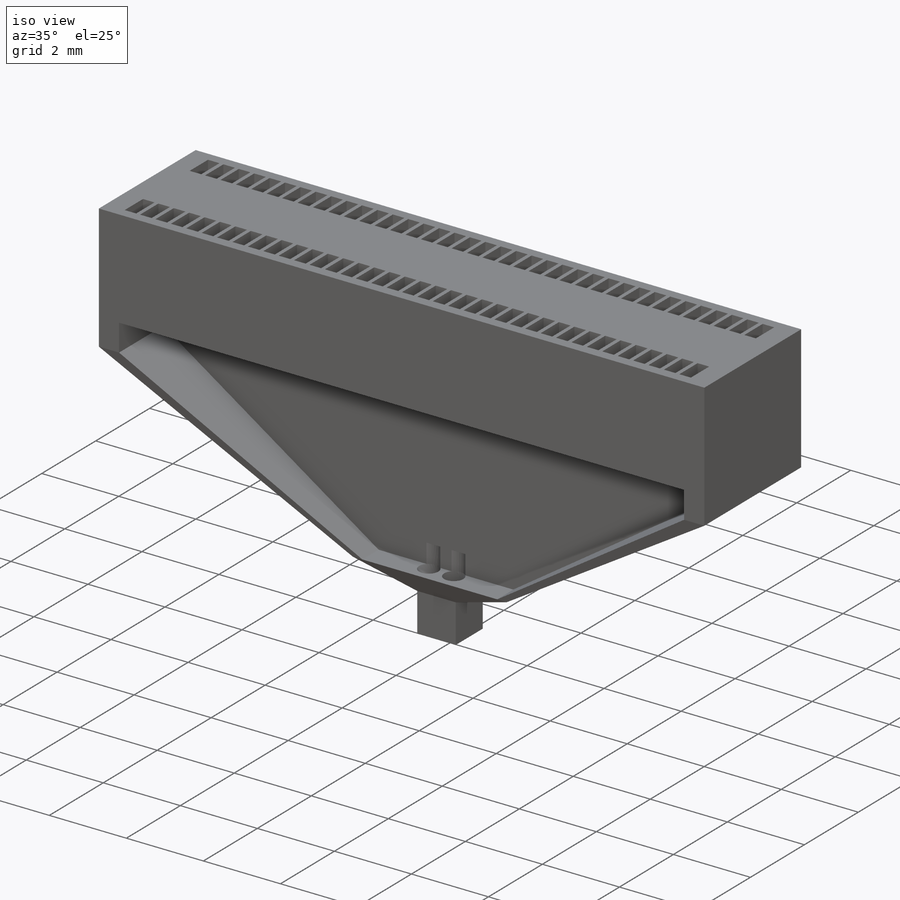
[diagram: iso view]
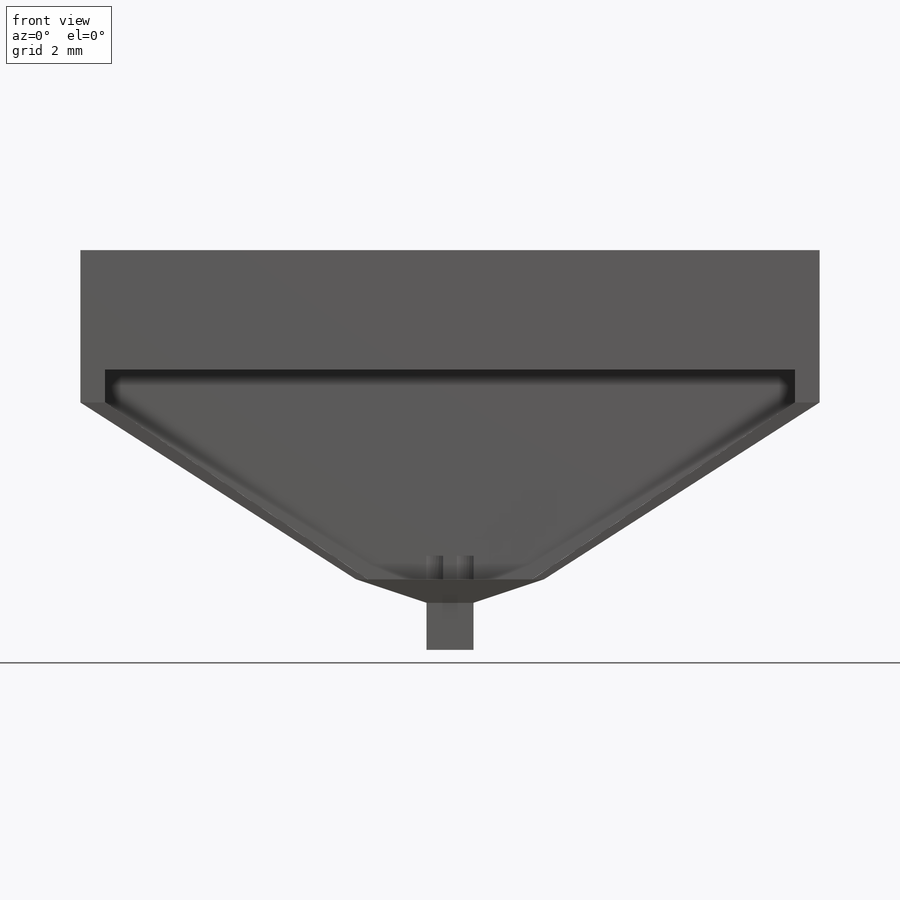
[diagram: front view]
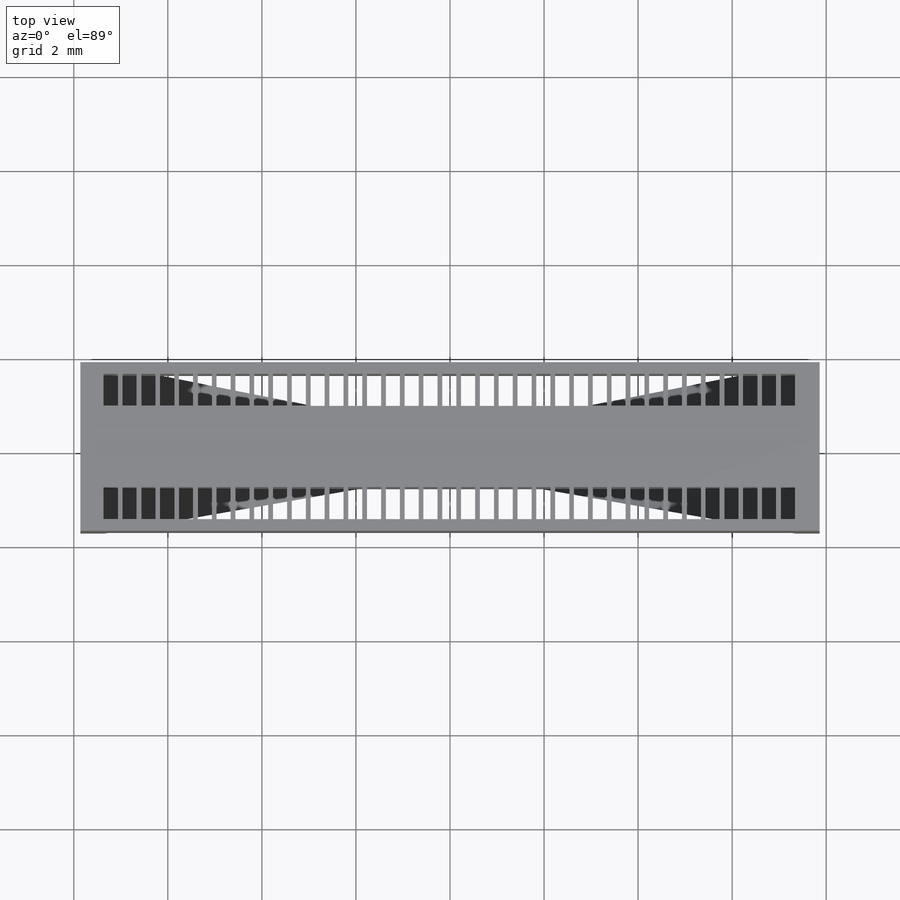
[diagram: top view]
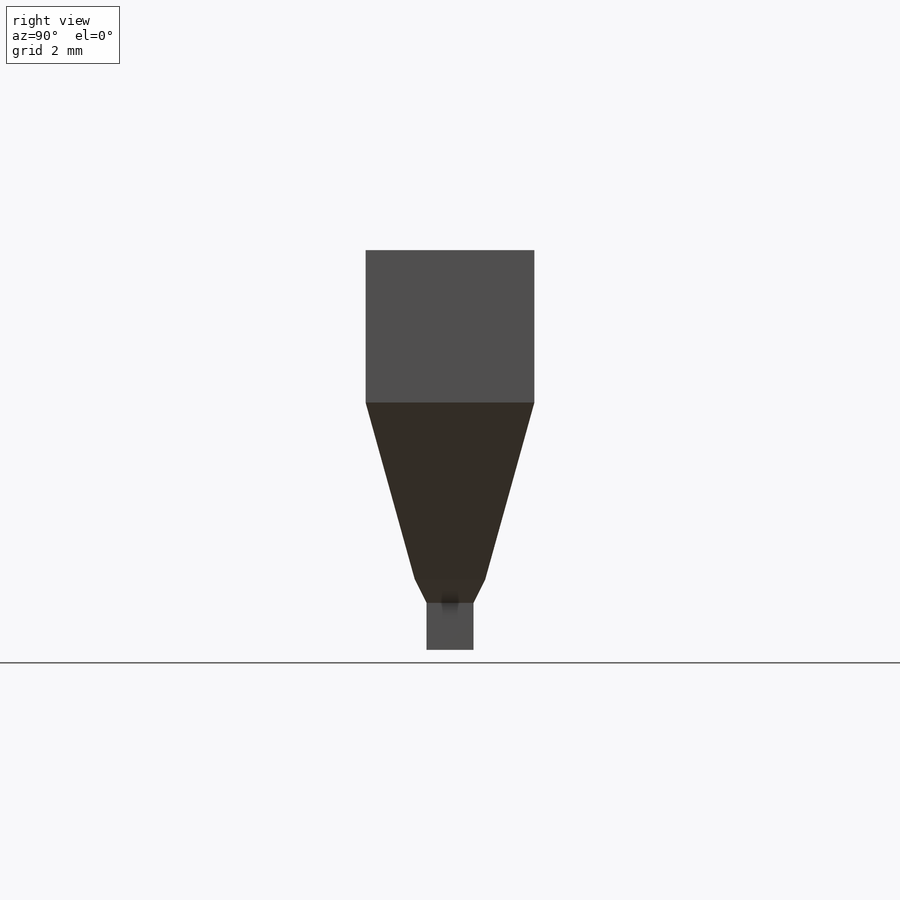
[diagram: right view]
SOLIDWORKS PART (.sldprt)
format: sldprt  version: not decoded by parser v0  size: 954,880 bytes
history: native  units: mm
features: sketch x23, extrude x4, cut_extrude x3, plane x2, material x1 (+12 scaffold rows collapsed)
feature tree (45):
  scaffold x12  (default folders/planes/origin — collapsed)
  material  "Material <not specified>"
  sketch  "main block"  dims[D1=15.72mm D2=3.59mm]
  extrude  "Main Well Block"  Depth=2.54mm
  sketch  "well sketch"  dims[D1=0.3mm D2=0.68mm D3=0.5251mm D4=0.25mm D7=0.68mm D5=37.0 D6=2.0]
  cut_extrude  "wells"  Depth=2.54mm
  sketch  "support beams"
  extrude  "support beams extr"  Depth=0.7mm
  sketch  "wall divider sketch"  dims[D1=0.3mm]
  plane  "Plane1"  Offset=7mm
  sketch  "exit base sketch"  dims[c1.D3=~0.212545mm c1.D7=0.15mm c1.D1=4.0mm c1.D2=1.5mm c1.D5=0.425mm c1.D6=0.3mm c2.D7=0.425mm c2.D5=0.325mm c2.D6=0.325mm c2.D3=2.0 c2.D4=2.0]
  sketch  "Sketch6"  dims[D1=0.25mm]
  sketch  "Sketch7"  dims[D1=0.25mm]
  sketch  "Sketch8"
  extrude  "divider wall extr"  Depth=0.7mm
  plane  "Plane2"  Offset=0.5mm
  sketch  "lower exit base sketch"  dims[D1=1.0mm D2=1.0mm]
  extrude  "tetrode guide tube"  [1 undecoded]
  sketch  "lower exit base sketch<2>"  dims[D1=1.0mm]
  sketch  "bottom tetrode holes"  dims[c1.D1=~0.17373mm c1.D3=0.45mm c1.D4=0.225mm c1.D5=0.225mm c2.D1=2.0 c2.D2=2.0]
  sketch  "tetrode guide top"
  sketch  "mid tetrode holes"
  sketch  "tetrode guide top<5>"
  sketch  "mid tetrode holes<3>"
  sketch  "tetrode guide top<6>"
  sketch  "mid tetrode holes<4>"
  sketch  "tetrode guide top<9>"
  sketch  "mid tetrode holes<7>"
  sketch  "tetrode guide top<7>"
  sketch  "mid tetrode holes<5>"
  cut_extrude  "Cut-Extrude3"  [1 undecoded]
  sketch  "mid tetrode holes<6>"  dims[D1=1.5mm]
  cut_extrude  "Cut-Extrude4"  [1 undecoded]
  sketch  "tetrode guide top<8>"  dims[D1=0.5mm]
decode coverage: 15 of 30 modeling features carry decoded parameters
note: ~ marks probable driven/reference dimensions
note: 3 parameter values undecoded
summary: no parameter record found for 3 features
note: suppression state not decoded; provenance and decode notes live in map.json
